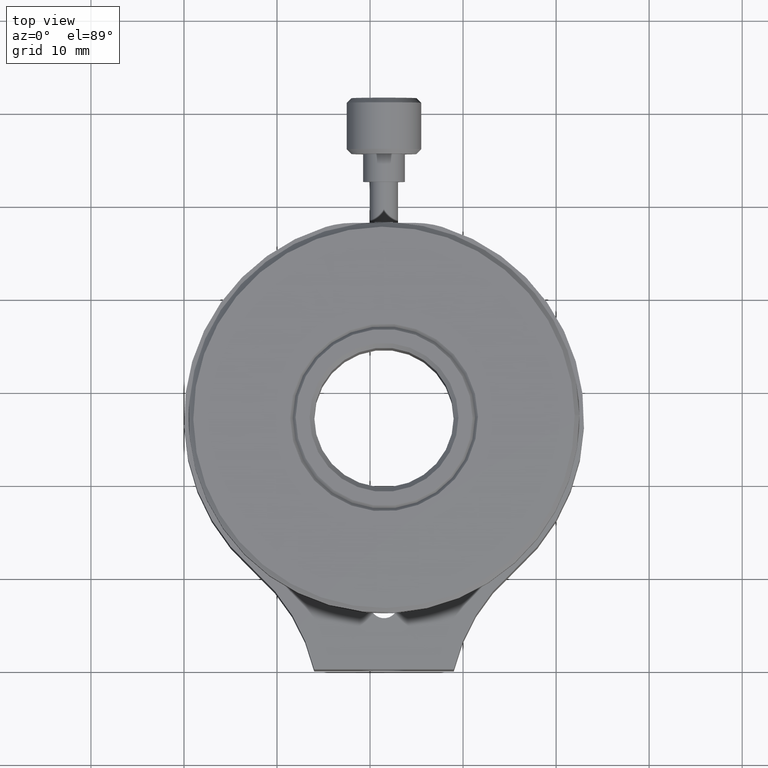
[diagram: clean part render]
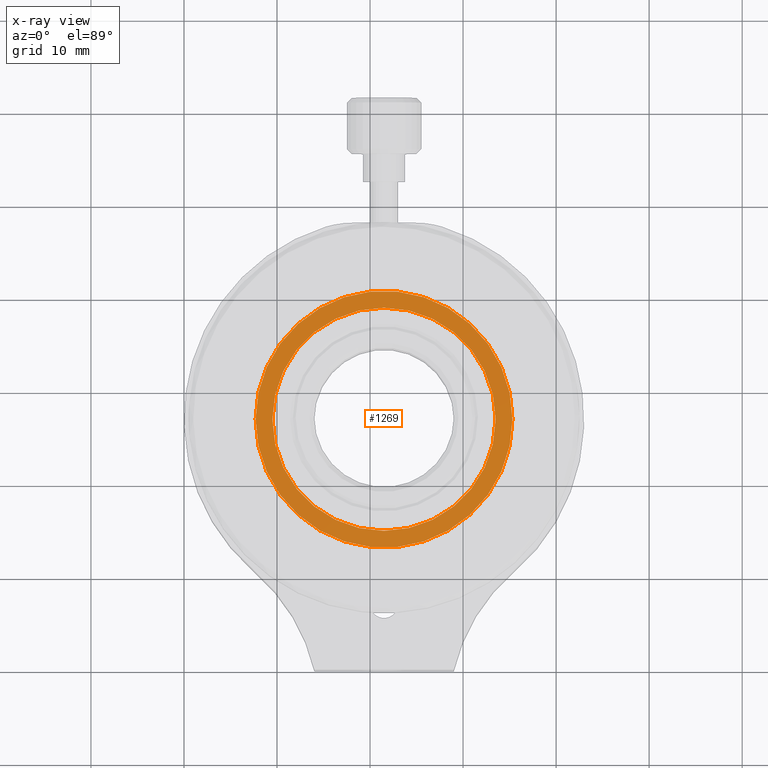
[diagram: x-ray — body ghosted, one internal face saturated and labeled with its STEP entity id]
A machine part, top view, then the same camera in x-ray: the body is ghosted and one INTERNAL B-rep face — a face not visible from any outside direction — is saturated and labeled: STEP entity #1269.
In plain terms, the highlighted planar face has unit normal (0, -0, 1).
Its self-contained STEP definition (entity closure, byte-faithful):
#39=FACE_BOUND('',#261,.T.);
#72=PLANE('',#1413);
#167=FACE_OUTER_BOUND('',#260,.T.);
#260=EDGE_LOOP('',(#989,#990));
#261=EDGE_LOOP('',(#991));
#440=CIRCLE('',#1408,12.);
#444=CIRCLE('',#1414,13.8);
#445=CIRCLE('',#1415,13.8);
#554=VERTEX_POINT('',#2557);
#557=VERTEX_POINT('',#2567);
#558=VERTEX_POINT('',#2568);
#705=EDGE_CURVE('',#554,#554,#440,.T.);
#710=EDGE_CURVE('',#557,#558,#444,.T.);
#711=EDGE_CURVE('',#558,#557,#445,.T.);
#989=ORIENTED_EDGE('',*,*,#710,.F.);
#990=ORIENTED_EDGE('',*,*,#711,.F.);
#991=ORIENTED_EDGE('',*,*,#705,.F.);
#1269=ADVANCED_FACE('',(#167,#39),#72,.F.);
#1408=AXIS2_PLACEMENT_3D('',#2558,#1692,#1693);
#1413=AXIS2_PLACEMENT_3D('',#2566,#1703,#1704);
#1414=AXIS2_PLACEMENT_3D('',#2569,#1705,#1706);
#1415=AXIS2_PLACEMENT_3D('',#2570,#1707,#1708);
#1692=DIRECTION('center_axis',(-7.63278329429804E-17,6.12323399573674E-17,
-1.));
#1693=DIRECTION('ref_axis',(-1.,-8.47033636166662E-18,7.63278329429804E-17));
#1703=DIRECTION('center_axis',(7.63278329429804E-17,-6.12323399573674E-17,
1.));
#1704=DIRECTION('ref_axis',(-1.,-8.47033636166662E-18,7.63278329429804E-17));
#1705=DIRECTION('center_axis',(7.63278329429804E-17,-6.12323399573674E-17,
1.));
#1706=DIRECTION('ref_axis',(-1.,-8.47033636166662E-18,7.63278329429804E-17));
#1707=DIRECTION('center_axis',(7.63278329429804E-17,-6.12323399573674E-17,
1.));
#1708=DIRECTION('ref_axis',(-1.,-8.47033636166662E-18,7.63278329429804E-17));
#2557=CARTESIAN_POINT('',(33.5,27.,25.4988721972856));
#2558=CARTESIAN_POINT('Origin',(21.5,27.,25.4988721972856));
#2566=CARTESIAN_POINT('Origin',(21.5,27.,25.4988721972856));
#2567=CARTESIAN_POINT('',(35.3,27.,25.4988721972856));
#2568=CARTESIAN_POINT('',(7.7,27.,25.4988721972856));
#2569=CARTESIAN_POINT('Origin',(21.5,27.,25.4988721972856));
#2570=CARTESIAN_POINT('Origin',(21.5,27.,25.4988721972856));